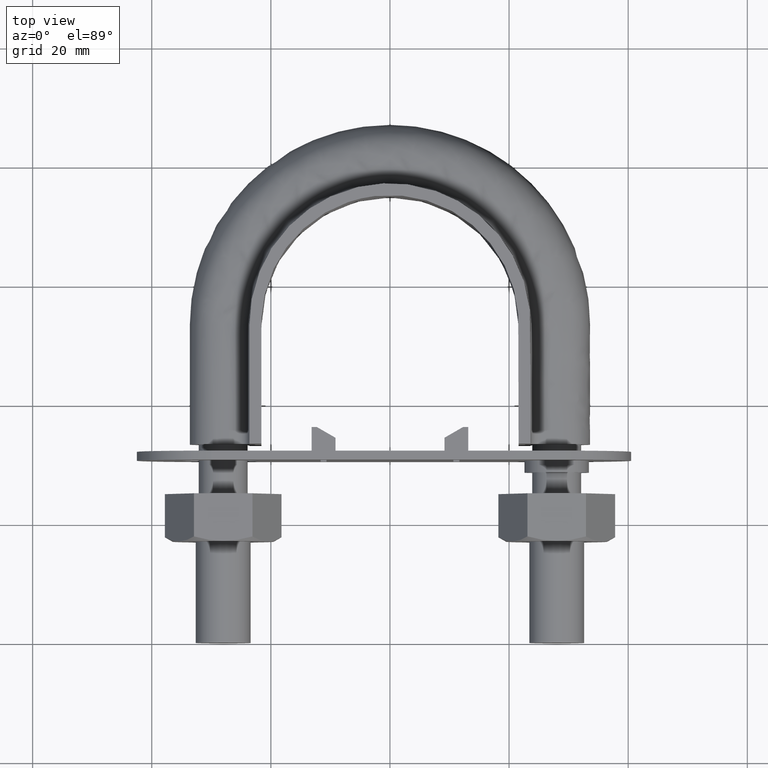
[diagram: clean part render]
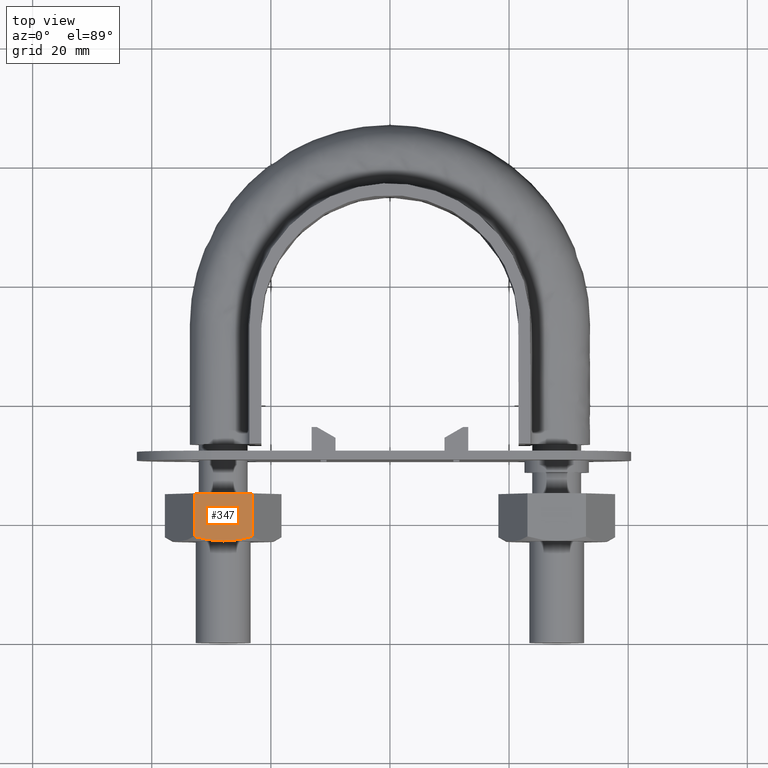
[diagram: same view with one face highlighted and labeled with its STEP entity id]
A machine part, top view. The second image highlights one B-rep face of the part: STEP entity #347.
In plain terms, the highlighted planar face has unit normal (-0, 0, -1).
Its self-contained STEP definition (entity closure, byte-faithful):
#347 = ADVANCED_FACE( '', ( #565 ), #566, .F. );
#565 = FACE_OUTER_BOUND( '', #1647, .T. );
#566 = PLANE( '', #1648 );
#1647 = EDGE_LOOP( '', ( #2303, #2304, #2305, #2306, #2307 ) );
#1648 = AXIS2_PLACEMENT_3D( '', #2308, #2309, #2310 );
#2303 = ORIENTED_EDGE( '', *, *, #2724, .F. );
#2304 = ORIENTED_EDGE( '', *, *, #2682, .F. );
#2305 = ORIENTED_EDGE( '', *, *, #2725, .F. );
#2306 = ORIENTED_EDGE( '', *, *, #2698, .F. );
#2307 = ORIENTED_EDGE( '', *, *, #2708, .F. );
#2308 = CARTESIAN_POINT( '', ( -32.9074772881080, 25.0000000000002, 8.50000000000236 ) );
#2309 = DIRECTION( '', ( -4.68708405421436E-013, 6.12303176912336E-017, -1.00000000000000 ) );
#2310 = DIRECTION( '', ( -1.00000000000000, -6.18268209163221E-045, 4.68708405421436E-013 ) );
#2682 = EDGE_CURVE( '', #3011, #3014, #3015, .T. );
#2698 = EDGE_CURVE( '', #3042, #3044, #3045, .T. );
#2708 = EDGE_CURVE( '', #3061, #3042, #3063, .F. );
#2724 = EDGE_CURVE( '', #3014, #3061, #3085, .T. );
#2725 = EDGE_CURVE( '', #3044, #3011, #3086, .T. );
#3011 = VERTEX_POINT( '', #3724 );
#3014 = VERTEX_POINT( '', #3727 );
#3015 = B_SPLINE_CURVE_WITH_KNOTS( '', 3, ( #3728, #3729, #3730, #3731, #3732, #3733 ), .UNSPECIFIED., .F., .F., ( 4, 2, 4 ), ( 5.98919403711487E-017, 0.00246745482903605, 0.00493490965807203 ), .UNSPECIFIED. );
#3042 = VERTEX_POINT( '', #3784 );
#3044 = VERTEX_POINT( '', #3786 );
#3045 = LINE( '', #3787, #3788 );
#3061 = VERTEX_POINT( '', #3808 );
#3063 = LINE( '', #3810, #3811 );
#3085 = B_SPLINE_CURVE_WITH_KNOTS( '', 3, ( #3857, #3858, #3859, #3860, #3861, #3862 ), .UNSPECIFIED., .F., .F., ( 4, 2, 4 ), ( 6.93889390390723E-018, 0.00246745482903609, 0.00493490965807218 ), .UNSPECIFIED. );
#3086 = LINE( '', #3863, #3864 );
#3724 = CARTESIAN_POINT( '', ( -23.1225006406933, 17.7505553499467, 8.49999999999777 ) );
#3727 = CARTESIAN_POINT( '', ( -27.9999999999962, 17.0000000000002, 8.50000000000006 ) );
#3728 = CARTESIAN_POINT( '', ( -23.1225006406934, 17.7505553499467, 8.49999999999777 ) );
#3729 = CARTESIAN_POINT( '', ( -23.9194282933190, 17.5215585493658, 8.49999999999815 ) );
#3730 = CARTESIAN_POINT( '', ( -24.7225568243334, 17.3328582843708, 8.49999999999853 ) );
#3731 = CARTESIAN_POINT( '', ( -26.3466937523106, 17.0716504305292, 8.49999999999929 ) );
#3732 = CARTESIAN_POINT( '', ( -27.1678340498055, 17.0000000000002, 8.49999999999967 ) );
#3733 = CARTESIAN_POINT( '', ( -27.9999999999962, 17.0000000000002, 8.50000000000006 ) );
#3784 = CARTESIAN_POINT( '', ( -32.8774993592992, 25.0000000000002, 8.50000000000235 ) );
#3786 = CARTESIAN_POINT( '', ( -23.1225006406933, 25.0000000000002, 8.49999999999777 ) );
#3787 = CARTESIAN_POINT( '', ( -37.7999999999962, 25.0000000000002, 8.50000000000465 ) );
#3788 = VECTOR( '', #4266, 1000.00000000000 );
#3808 = CARTESIAN_POINT( '', ( -32.8774993592992, 17.7505553499467, 8.50000000000235 ) );
#3810 = CARTESIAN_POINT( '', ( -32.8774993592992, 25.0000000000002, 8.50000000000235 ) );
#3811 = VECTOR( '', #4286, 1000.00000000000 );
#3857 = CARTESIAN_POINT( '', ( -27.9999999999962, 17.0000000000002, 8.50000000000006 ) );
#3858 = CARTESIAN_POINT( '', ( -28.8321659501869, 17.0000000000002, 8.50000000000045 ) );
#3859 = CARTESIAN_POINT( '', ( -29.6533062476819, 17.0716504305292, 8.50000000000084 ) );
#3860 = CARTESIAN_POINT( '', ( -31.2774431756591, 17.3328582843709, 8.50000000000160 ) );
#3861 = CARTESIAN_POINT( '', ( -32.0805717066735, 17.5215585493658, 8.50000000000198 ) );
#3862 = CARTESIAN_POINT( '', ( -32.8774993592991, 17.7505553499467, 8.50000000000235 ) );
#3863 = CARTESIAN_POINT( '', ( -23.1225006406933, 25.0000000000002, 8.49999999999777 ) );
#3864 = VECTOR( '', #4312, 1000.00000000000 );
#4266 = DIRECTION( '', ( 1.00000000000000, -2.44921270764447E-016, -4.68708405421436E-013 ) );
#4286 = DIRECTION( '', ( -2.44921270764476E-016, -1.00000000000000, -6.12303176911188E-017 ) );
#4312 = DIRECTION( '', ( -2.44921270764476E-016, -1.00000000000000, -6.12303176911188E-017 ) );